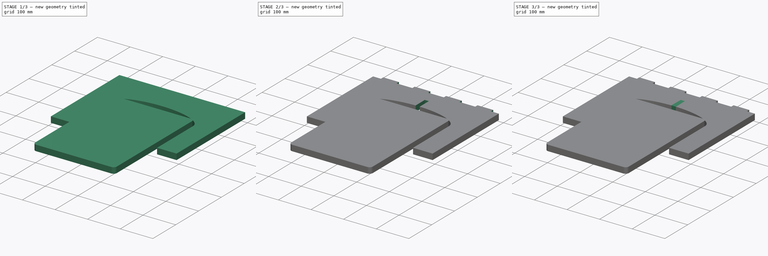
[diagram: build sequence overview — one tinted view per stage of 3, left to right]
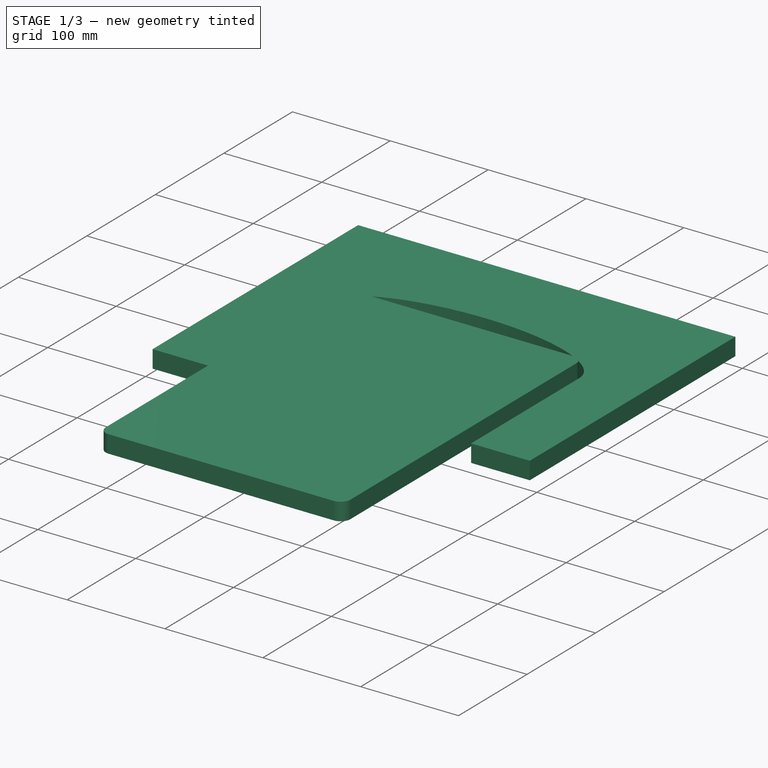
[diagram: stage 1 of 3 — iso view after this stage's code; geometry added in this stage tinted green]
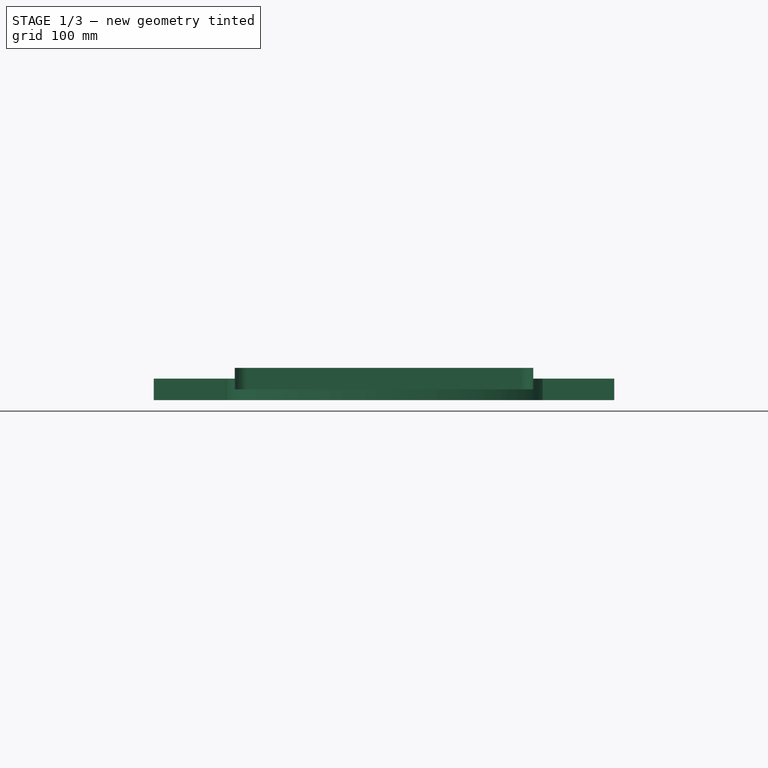
[diagram: stage 1 of 3 — front view after this stage's code; geometry added in this stage tinted green]
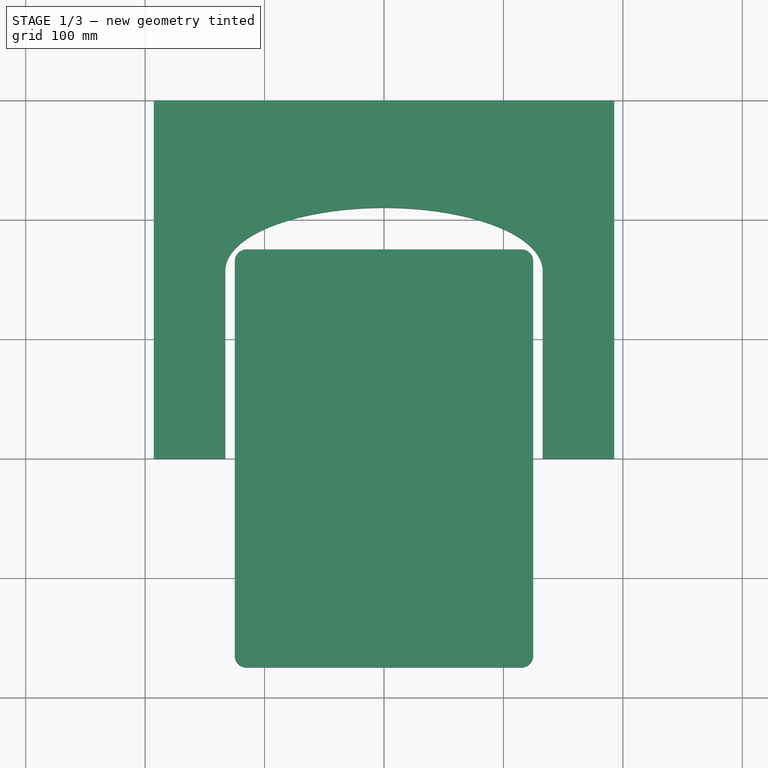
[diagram: stage 1 of 3 — top view after this stage's code; geometry added in this stage tinted green]
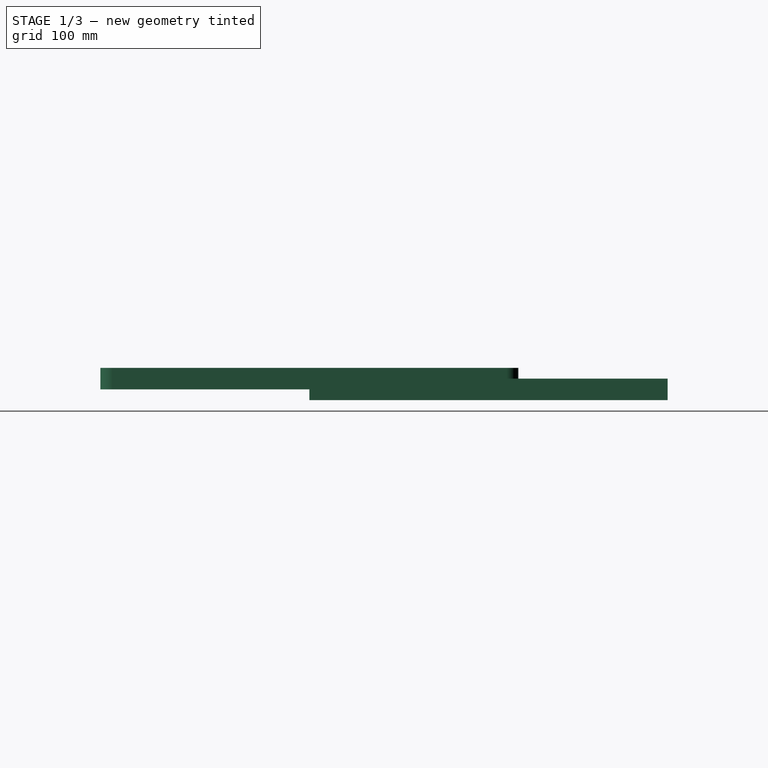
[diagram: stage 1 of 3 — right view after this stage's code; geometry added in this stage tinted green]
FCSTD DOCUMENT  (FreeCAD 0.22R37100 (Git))
Label: stool2
License: All rights reserved
LicenseURL: http://en.wikipedia.org/wiki/All_rights_reserved
objects: Part::Mirroring×8, Part::Compound×8, PartDesign::SubShapeBinder×8, Sketcher::SketchObject×6, PartDesign::Pocket×5, PartDesign::Pad×3, PartDesign::Body×3, Spreadsheet::Sheet×1, App::Part×1
note: 49 computed .brp shape members not serialized (recipe doc carries the construction recipe); baked Part::Feature solids carry a one-line shape summary decoded from their .brp

FEATURE [Sketcher::SketchObject] Sketch  label="leg_sketch"
  FullyConstrained = true
  expr: .Constraints.width = Sketch003.Constraints.leg_width
  sketch-geometry (11):
    g0: ArcOfEllipse CenterX=0 CenterY=157.5 CenterZ=0 NormalX=0 NormalY=0 NormalZ=1 MajorRadius=132.759 MinorRadius=52.5 AngleXU=0 StartAngle=0 EndAngle=1.5708
    g1: LineSegment StartX=132.759 StartY=157.5 StartZ=0 EndX=-132.759 EndY=157.5 EndZ=0
    g2: LineSegment StartX=-3.7e-15 StartY=210 StartZ=0 EndX=3.7e-15 EndY=105 EndZ=0
    g3: GeomPoint X=121.938 Y=157.5 Z=0
    g4: GeomPoint X=-121.938 Y=157.5 Z=0
    g5: LineSegment StartX=132.759 StartY=157.5 StartZ=0 EndX=132.759 EndY=0 EndZ=0
    g6: LineSegment StartX=132.759 StartY=0 StartZ=0 EndX=192.759 EndY=0 EndZ=0
    g7: LineSegment StartX=192.759 StartY=0 StartZ=0 EndX=192.759 EndY=300 EndZ=0
    g8: LineSegment StartX=192.759 StartY=300 StartZ=0 EndX=0 EndY=300 EndZ=0
    g9: GeomPoint X=-192.759 Y=300 Z=0
    g10: LineSegment StartX=0 StartY=0 StartZ=0 EndX=3.7e-15 EndY=105 EndZ=0
  constraints (22):
    c: InternalAlignment(g1-g4 -> g0) x4
    c: PointOnObject(g0,g-2)
    c: PointOnObject(g0,g-2)
    c: PointOnObject(g5,g-1)
    c: Tangent(g0,g5) = 1.5708
    c: Vertical(g5)
    c: Coincident(g6,g5)
    c: PointOnObject(g6,g-1)
    c: Coincident(g7,g6)
    c: Vertical(g7)
    c: Coincident(g8,g7)
    c: PointOnObject(g8,g-2)
    c: Horizontal(g8)
    c: Symmetric(g9,g7,g-2)
    c: DistanceX(g9,g7) = 385.519  'width'
    c: DistanceY(g7) = 300  'height'
    c: DistanceX(g6,g6) = 60  'leg_width'
    c: DistanceY(g0,g8) = 90  'arc_height'
    c: Horizontal(g1)
    c: Coincident(g10,g-1)
    c: Coincident(g10,g2)
    c: Equal(g10,g2)
FEATURE [Part::Mirroring] Part__Mirroring  label="Sketch (Mirror #1)"
  Base = (0,0,0)
  Normal = (1,0,0)
  Source = -> Sketch
FEATURE [Sketcher::SketchObject] Sketch001  label="cut1"
  ExternalGeometry = -> [Sketch]
  FullyConstrained = true
  sketch-geometry (3):
    g0: LineSegment StartX=0 StartY=250 StartZ=0 EndX=6.231 EndY=250 EndZ=0
    g1: LineSegment StartX=6.231 StartY=250 StartZ=0 EndX=6.231 EndY=0 EndZ=0
    g2: LineSegment StartX=6.231 StartY=0 StartZ=0 EndX=0 EndY=0 EndZ=0
  constraints (9):
    c: PointOnObject(g0,g-2)
    c: Horizontal(g0)
    c: Coincident(g1,g0)
    c: Vertical(g1)
    c: DistanceX(g0,g0) = 6.231  'cut_width'
    c: PointOnObject(g1,g-1)
    c: Coincident(g2,g1)
    c: Coincident(g2,g-1)
    c: DistanceY(g0) = 250
FEATURE [Sketcher::SketchObject] Sketch002
  ExternalGeometry = -> [Sketch]
  FullyConstrained = true
  expr: Constraints[8] = <<cut1>>.Constraints.cut_width
  sketch-geometry (4):
    g0: LineSegment StartX=0 StartY=250 StartZ=0 EndX=6.231 EndY=250 EndZ=0
    g1: LineSegment StartX=6.231 StartY=250 StartZ=0 EndX=6.231 EndY=300 EndZ=0
    g2: LineSegment StartX=6.231 StartY=300 StartZ=0 EndX=0 EndY=300 EndZ=0
    g3: LineSegment StartX=0 StartY=300 StartZ=0 EndX=0 EndY=250 EndZ=0
  constraints (11):
    c: Coincident(g0,g1)
    c: Coincident(g1,g2)
    c: Coincident(g2,g3)
    c: Coincident(g3,g0)
    c: Horizontal(g0)
    c: Horizontal(g2)
    c: Vertical(g1)
    c: Coincident(g2,g-4)
    c: DistanceX(g2,g2) = 6.231
    c: DistanceY(g0) = 250
    c: PointOnObject(g0,g-2)
FEATURE [Part::Compound] Compound
  Links = -> [Part__Mirroring,Sketch]
FEATURE [PartDesign::SubShapeBinder] Binder
  BindCopyOnChange = 0
  BindMode = 0
  ClaimChildren = true
  Context = -> Body [Binder.]
  Fuse = false
  MakeFace = true
  OffsetFill = false
  OffsetIntersection = false
  OffsetJoinType = 0
  OffsetOpenResult = false
  PartialLoad = false
  Relative = false
  Support = -> [Compound]
  _Version = 2
FEATURE [Part::Mirroring] Part__Mirroring001  label="Sketch001 (Mirror #2)"
  Base = (0,0,0)
  Normal = (1,0,0)
  Source = -> Sketch001
FEATURE [Part::Compound] Compound001
  Links = -> [Part__Mirroring001,Sketch001]
FEATURE [Part::Mirroring] Part__Mirroring002  label="Sketch002 (Mirror #3)"
  Base = (0,0,0)
  Normal = (1,0,0)
  Source = -> Sketch002
FEATURE [Part::Compound] Compound002
  Links = -> [Part__Mirroring002,Sketch002]
FEATURE [PartDesign::SubShapeBinder] Binder001
  BindCopyOnChange = 0
  BindMode = 0
  ClaimChildren = true
  Context = -> Body001 [Binder001.]
  Fuse = false
  MakeFace = true
  OffsetFill = false
  OffsetIntersection = false
  OffsetJoinType = 0
  OffsetOpenResult = false
  PartialLoad = false
  Relative = false
  Support = -> [Compound]
  _Version = 2
FEATURE [PartDesign::SubShapeBinder] Binder002
  BindCopyOnChange = 0
  BindMode = 0
  ClaimChildren = true
  Context = -> Body [Binder002.]
  Fuse = false
  MakeFace = true
  OffsetFill = false
  OffsetIntersection = false
  OffsetJoinType = 0
  OffsetOpenResult = false
  PartialLoad = false
  Relative = false
  Support = -> [Compound001]
  _Version = 2
FEATURE [PartDesign::SubShapeBinder] Binder003
  BindCopyOnChange = 0
  BindMode = 0
  ClaimChildren = true
  Context = -> Body001 [Binder003.]
  Fuse = false
  MakeFace = true
  OffsetFill = false
  OffsetIntersection = false
  OffsetJoinType = 0
  OffsetOpenResult = false
  PartialLoad = false
  Relative = false
  Support = -> [Compound002]
  _Version = 2
FEATURE [PartDesign::Pad] Pad
  Direction = (0,0,1)
  Length = 18
  Length2 = 10
  Midplane = true
  Profile = -> Binder
  Suppressed = false
  Type = 0
FEATURE [Sketcher::SketchObject] Sketch003  label="sit_sketch"
  FullyConstrained = true
  expr: Constraints[7] = <<Properties>>.Width / 2
  expr: Constraints[8] = <<Properties>>.Length / 2
  sketch-geometry (7):
    g0: LineSegment StartX=0 StartY=175 StartZ=0 EndX=115 EndY=175 EndZ=0
    g1: LineSegment StartX=125 StartY=165 StartZ=0 EndX=125 EndY=0 EndZ=0
    g2: ArcOfCircle CenterX=115 CenterY=165 CenterZ=0 NormalX=0 NormalY=0 NormalZ=1 AngleXU=0 Radius=10 StartAngle=-9e-16 EndAngle=1.5708
    g3: GeomPoint X=107.531 Y=159.979 Z=0
    g4: LineSegment StartX=100.061 StartY=165 StartZ=0 EndX=115 EndY=154.959 EndZ=0
    g5: LineSegment StartX=0 StartY=0 StartZ=0 EndX=107.531 EndY=159.979 EndZ=0
    g6: GeomPoint X=-107.531 Y=-159.979 Z=0
  constraints (19):
    c: PointOnObject(g0,g-2)
    c: Horizontal(g0)
    c: PointOnObject(g1,g-1)
    c: Vertical(g1)
    c: Tangent(g0,g2) = 1.5708
    c: Tangent(g1,g2) = 1.5708
    c: Distance(g4) = 18
    c: DistanceX(g1) = 125
    c: DistanceY(g0) = 175
    c: Coincident(g5,g-1)
    c: Coincident(g5,g3)
    c: Symmetric(g4,g4,g3)
    c: Perpendicular(g5,g4)
    c: Angle(g5,g-2) = 0.591791  'angle'
    c: Symmetric(g6,g3,g-1)
    c: Distance(g6,g3) = 385.519  'leg_width'
    c: Radius(g2) = 10
    c: Distance(g4,g0) = 10
    c: Distance(g4,g1) = 10
FEATURE [Part::Mirroring] Part__Mirroring003  label="Sketch003 (Mirror #4)"
  Base = (0,0,0)
  Normal = (1,0,0)
  Source = -> Sketch003
FEATURE [Part::Compound] Compound003
  Links = -> [Part__Mirroring003,Sketch003]
FEATURE [Part::Mirroring] Part__Mirroring004  label="Compound003 (Mirror #5)"
  Base = (0,0,0)
  Normal = (0,1,0)
  Source = -> Compound003
FEATURE [Part::Compound] Compound004
  Links = -> [Part__Mirroring004,Compound003]
FEATURE [PartDesign::SubShapeBinder] Binder004
  BindCopyOnChange = 0
  BindMode = 0
  ClaimChildren = true
  Context = -> Body002 [Binder004.]
  Fuse = false
  MakeFace = true
  OffsetFill = false
  OffsetIntersection = false
  OffsetJoinType = 0
  OffsetOpenResult = false
  PartialLoad = false
  Relative = false
  Support = -> [Compound004]
  _Version = 2
FEATURE [PartDesign::Pad] Pad002
  Direction = (0,0,1)
  Length = 18
  Length2 = 10
  Profile = -> Binder004
  Refine = true
  Suppressed = false
  Type = 0
FEATURE [PartDesign::Body] Body
  Group = -> [Binder,Binder002,Pad,Pocket,Binder005,Pocket003]
  Origin = -> Origin
  Placement = pos=(0,0,0) rot=(0,1,0;0.591791rad)
  Tip = -> Pocket003
  expr: .Placement.Rotation.Angle = Sketch003.Constraints.angle
FEATURE [App::Part] Part
  Group = -> [Body,Body001]
  Origin = -> Origin003
  Placement = pos=(0,0,0) rot=(0.57735,0.57735,0.57735;2.0944rad)
FEATURE [Sketcher::SketchObject] Sketch005
  ExternalGeometry = -> [Sketch003]
  FullyConstrained = false
  sketch-geometry (24):
    g0: LineSegment StartX=0 StartY=0 StartZ=0 EndX=107.531 EndY=159.979 EndZ=0
    g1: LineSegment StartX=20.8278 StartY=15.0326 StartZ=0 EndX=47.7104 EndY=55.0274 EndZ=0
    g2: LineSegment StartX=47.7104 StartY=55.0274 StartZ=0 EndX=32.9374 EndY=64.9571 EndZ=0
    g3: LineSegment StartX=32.9374 StartY=64.9571 StartZ=0 EndX=6.05482 EndY=24.9623 EndZ=0
    g4: LineSegment StartX=6.05482 StartY=24.9623 StartZ=0 EndX=20.8278 EndY=15.0326 EndZ=0
    g5: LineSegment StartX=74.5931 StartY=95.0223 StartZ=0 EndX=101.476 EndY=135.017 EndZ=0
    g6: LineSegment StartX=101.476 StartY=135.017 StartZ=0 EndX=86.7027 EndY=144.947 EndZ=0
    g7: LineSegment StartX=86.7027 StartY=144.947 StartZ=0 EndX=59.8201 EndY=104.952 EndZ=0
    g8: LineSegment StartX=59.8201 StartY=104.952 StartZ=0 EndX=74.5931 EndY=95.0223 EndZ=0
    g9: LineSegment StartX=115 StartY=154.959 StartZ=0 EndX=100.061 EndY=165 EndZ=0
    g10: LineSegment StartX=0 StartY=0 StartZ=0 EndX=-22.8748 EndY=15.3754 EndZ=0
    g11: LineSegment StartX=-22.8748 StartY=15.3754 StartZ=0 EndX=-9.43351 EndY=35.3728 EndZ=0
    g12: LineSegment StartX=-9.43351 StartY=35.3728 StartZ=0 EndX=4.0078 EndY=55.3702 EndZ=0
    g13: LineSegment StartX=4.0078 StartY=55.3702 StartZ=0 EndX=17.4491 EndY=75.3676 EndZ=0
    g14: LineSegment StartX=17.4491 StartY=75.3676 StartZ=0 EndX=30.8904 EndY=95.3651 EndZ=0
    g15: LineSegment StartX=30.8904 StartY=95.3651 StartZ=0 EndX=44.3317 EndY=115.362 EndZ=0
    g16: LineSegment StartX=44.3317 StartY=115.362 StartZ=0 EndX=57.7731 EndY=135.36 EndZ=0
    g17: LineSegment StartX=57.7731 StartY=135.36 StartZ=0 EndX=71.2144 EndY=155.357 EndZ=0
    g18: LineSegment StartX=71.2144 StartY=155.357 StartZ=0 EndX=84.6557 EndY=175.355 EndZ=0
    g19: LineSegment StartX=84.6557 StartY=175.355 StartZ=0 EndX=100.061 EndY=165 EndZ=0
    g20: LineSegment StartX=-9.43351 StartY=35.3728 StartZ=0 EndX=6.05482 EndY=24.9623 EndZ=0
    g21: LineSegment StartX=17.4491 StartY=75.3676 StartZ=0 EndX=32.9374 EndY=64.9571 EndZ=0
    g22: LineSegment StartX=44.3317 StartY=115.362 StartZ=0 EndX=59.8201 EndY=104.952 EndZ=0
    g23: LineSegment StartX=71.2144 StartY=155.357 StartZ=0 EndX=86.7027 EndY=144.947 EndZ=0
  constraints (64):
    c: Coincident(g0,g-1)
    c: Coincident(g1,g2)
    c: Coincident(g2,g3)
    c: Coincident(g3,g4)
    c: Coincident(g4,g1)
    c: Parallel(g1,g3)
    c: Parallel(g2,g4)
    c: Coincident(g5,g6)
    c: Coincident(g6,g7)
    c: Coincident(g7,g8)
    c: Coincident(g8,g5)
    c: Parallel(g5,g7)
    c: Parallel(g6,g8)
    c: Perpendicular(g6,g5)
    c: Perpendicular(g2,g1)
    c: Symmetric(g1,g3,g0)
    c: Distance(g4) = 17.8
    c: Equal(g8,g4)
    c: Symmetric(g5,g7,g0)
    c: Symmetric(g9,g9,g0)
    c: Perpendicular(g0,g9)
    c: Coincident(g0,g10)
    c: Coincident(g10,g11)
    c: Coincident(g11,g12)
    c: Coincident(g12,g13)
    c: Coincident(g13,g14)
    c: Coincident(g14,g15)
    c: Coincident(g15,g16)
    c: Coincident(g16,g17)
    c: Coincident(g17,g18)
    c: Coincident(g18,g19)
    c: Coincident(g19,g9)
    c: Parallel(g9,g19)
    c: Perpendicular(g10,g0)
    c: Parallel(g11,g12)
    c: Parallel(g12,g13)
    c: Parallel(g14,g15)
    c: Parallel(g15,g16)
    c: Parallel(g16,g17)
    c: Parallel(g17,g18)
    c: Equal(g11,g12)
    c: Equal(g12,g13)
    c: Equal(g13,g14)
    c: Equal(g14,g15)
    c: Equal(g15,g16)
    c: Equal(g16,g17)
    c: Equal(g17,g18)
    c: Parallel(g13,g14)
    c: Perpendicular(g11,g10)
    c: Coincident(g20,g11)
    c: Coincident(g20,g3)
    c: Coincident(g21,g13)
    c: Coincident(g21,g2)
    c: Coincident(g22,g15)
    c: Coincident(g22,g7)
    c: Perpendicular(g15,g22)
    c: Perpendicular(g13,g21)
    c: Distance(g9) = 18
    c: Distance(g9,g-3) = 10
    c: Distance(g9,g-4) = 10
    c: Perpendicular(g12,g20)
    c: Coincident(g23,g17)
    c: Coincident(g23,g6)
    c: Perpendicular(g17,g23)
FEATURE [Part::Mirroring] Part__Mirroring006  label="Sketch005 (Mirror #7)"
  Base = (0,0,0)
  Normal = (1,0,0)
  Source = -> Sketch005
FEATURE [Part::Compound] Compound006
  Links = -> [Part__Mirroring006,Sketch005]
FEATURE [Part::Mirroring] Part__Mirroring007  label="Compound006 (Mirror #8)"
  Base = (0,0,0)
  Normal = (0,1,0)
  Source = -> Compound006
FEATURE [Part::Compound] Compound007
  Links = -> [Part__Mirroring007,Compound006]
FEATURE [PartDesign::SubShapeBinder] Binder007
  BindCopyOnChange = 0
  BindMode = 0
  ClaimChildren = true
  Context = -> Body002 [Binder007.]
  Fuse = false
  MakeFace = true
  OffsetFill = false
  OffsetIntersection = false
  OffsetJoinType = 0
  OffsetOpenResult = false
  PartialLoad = false
  Relative = false
  Support = -> [Compound007]
  _Version = 2
FEATURE [PartDesign::Pocket] Pocket004
  BaseFeature = -> Pad002
  Direction = (0,0,-1)
  Length = 10
  Length2 = 5
  Profile = -> Binder007
  Reversed = true
  Suppressed = false
  Type = 0
FEATURE [PartDesign::Body] Body002
  Group = -> [Binder004,Pad002,Binder007,Pocket004]
  Origin = -> Origin002
  Placement = pos=(0,0,300) rot=(0,0,1;0rad)
  Tip = -> Pocket004
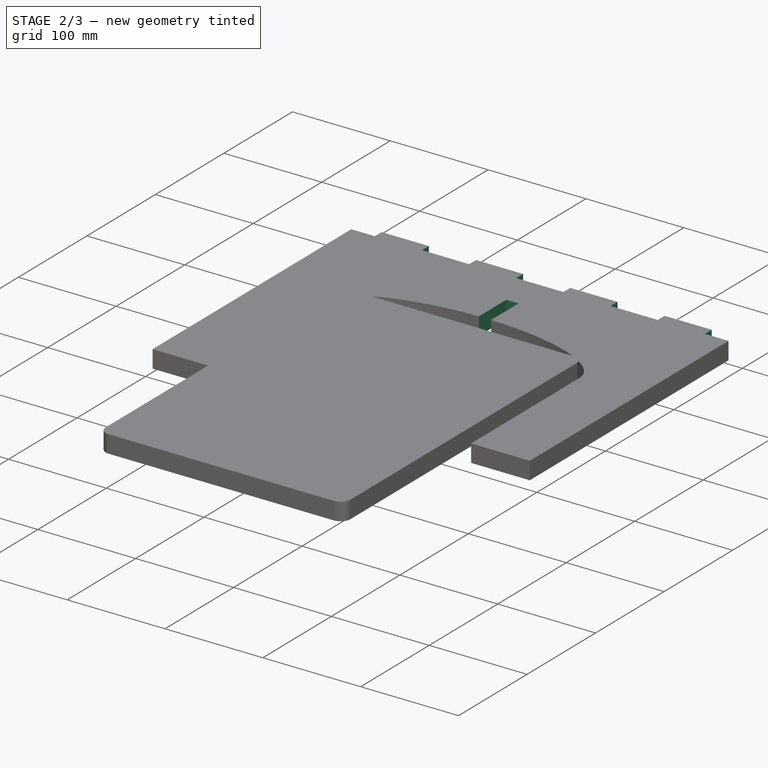
[diagram: stage 2 of 3 — iso view after this stage's code; geometry added in this stage tinted green]
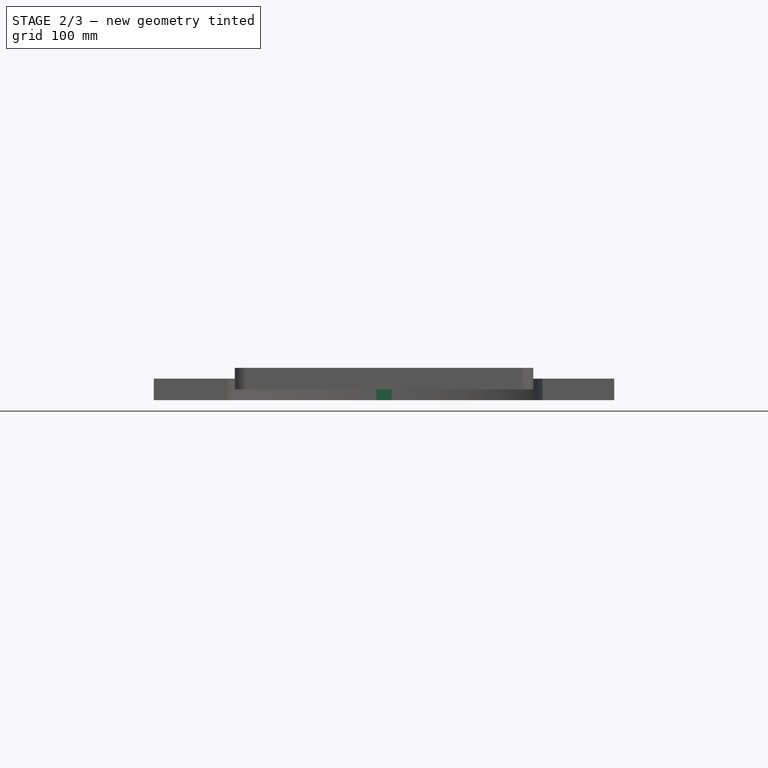
[diagram: stage 2 of 3 — front view after this stage's code; geometry added in this stage tinted green]
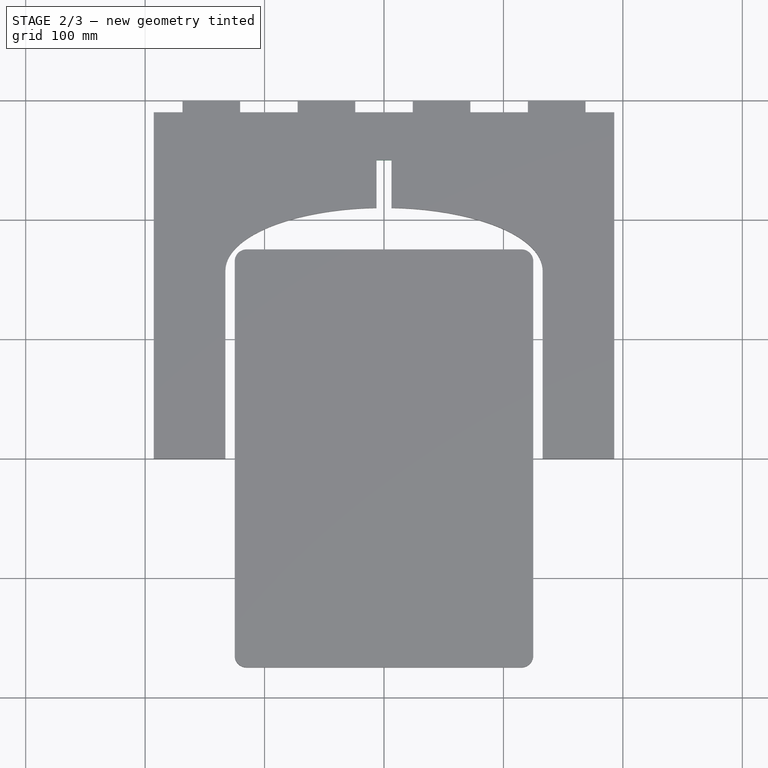
[diagram: stage 2 of 3 — top view after this stage's code; geometry added in this stage tinted green]
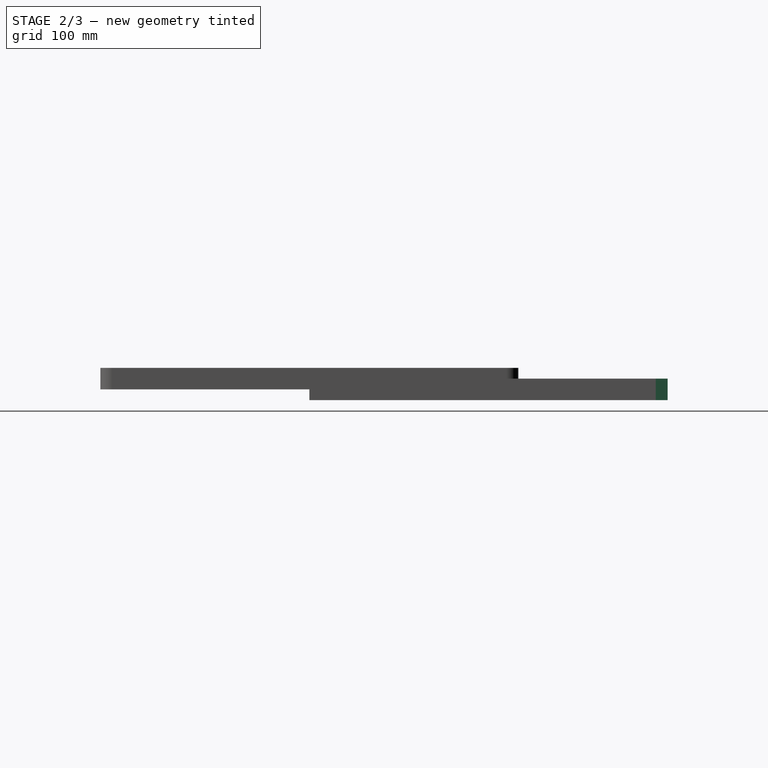
[diagram: stage 2 of 3 — right view after this stage's code; geometry added in this stage tinted green]
FEATURE [PartDesign::Pocket] Pocket
  BaseFeature = -> Pad
  Direction = (0,0,-1)
  Length = 5
  Length2 = 5
  Midplane = true
  Profile = -> Binder002
  Refine = true
  Suppressed = false
  Type = 1
FEATURE [PartDesign::Body] Body001
  Group = -> [Binder001,Binder003,Pad001,Pocket001,Binder006,Pocket002]
  Origin = -> Origin001
  Placement = pos=(0,0,0) rot=(0,-1,0;0.591791rad)
  Tip = -> Pocket002
  expr: .Placement.Rotation.Angle = -Sketch003.Constraints.angle
FEATURE [PartDesign::Pocket] Pocket003
  BaseFeature = -> Pocket
  Direction = (0,0,-1)
  Length = 5
  Length2 = 5
  Midplane = true
  Profile = -> Binder005
  Suppressed = false
  Type = 1
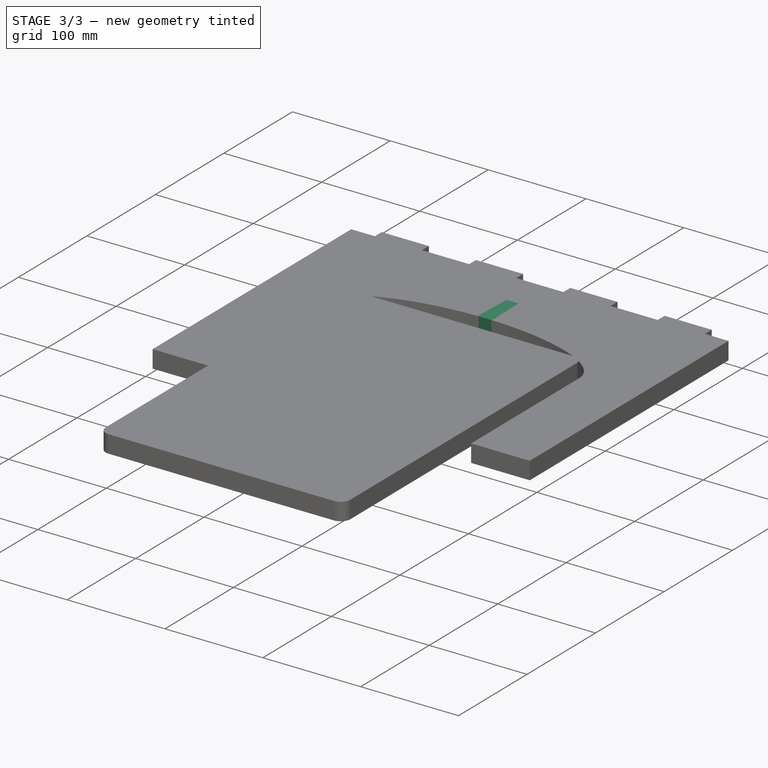
[diagram: stage 3 of 3 — iso view after this stage's code; geometry added in this stage tinted green]
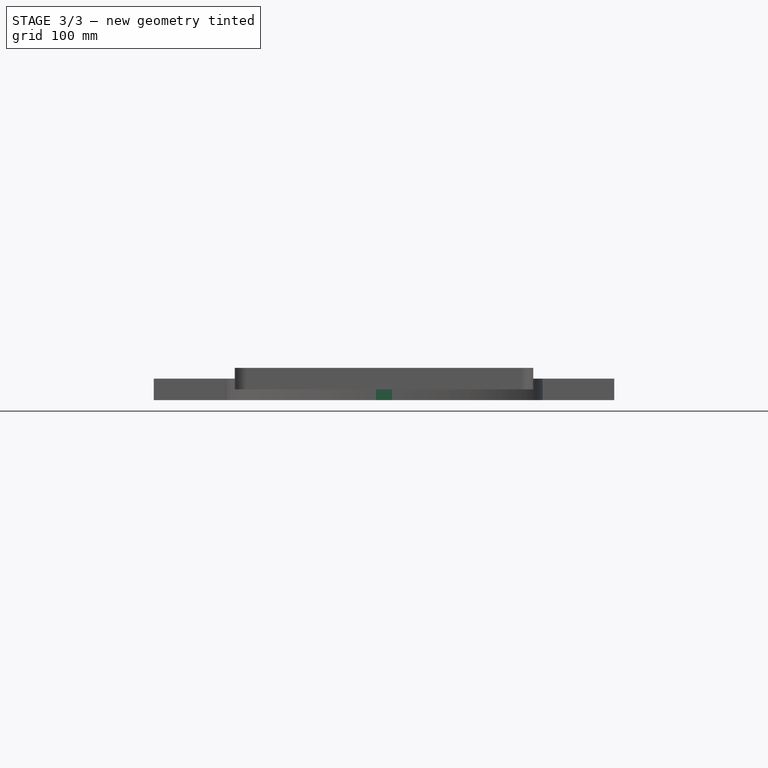
[diagram: stage 3 of 3 — front view after this stage's code; geometry added in this stage tinted green]
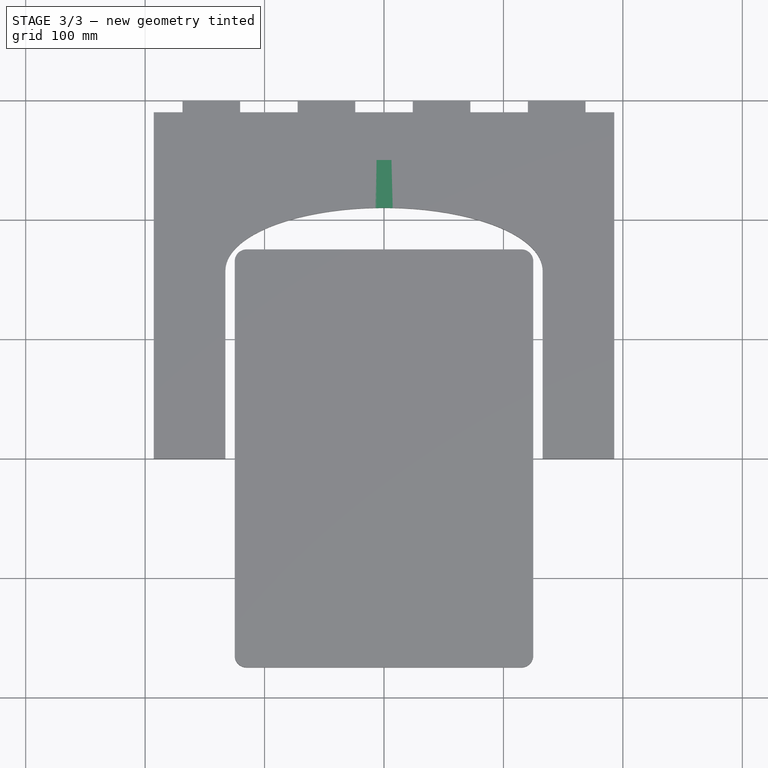
[diagram: stage 3 of 3 — top view after this stage's code; geometry added in this stage tinted green]
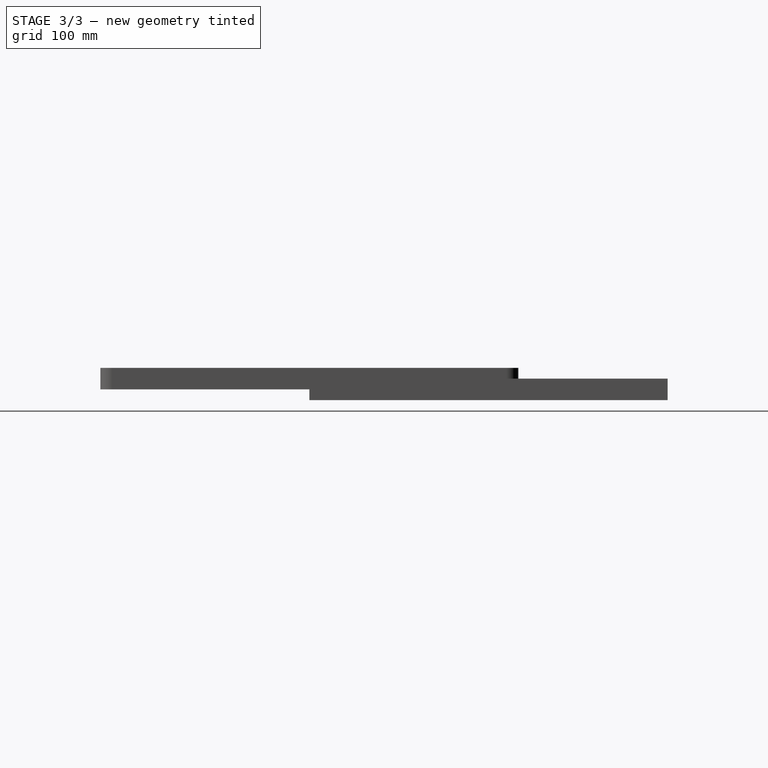
[diagram: stage 3 of 3 — right view after this stage's code; geometry added in this stage tinted green]
FEATURE [PartDesign::Pad] Pad001
  Direction = (0,0,1)
  Length = 18
  Length2 = 10
  Midplane = true
  Profile = -> Binder001
  Suppressed = false
  Type = 0
FEATURE [PartDesign::Pocket] Pocket001
  BaseFeature = -> Pad001
  Direction = (0,0,-1)
  Length = 5
  Length2 = 5
  Midplane = true
  Profile = -> Binder003
  Suppressed = false
  Type = 1
FEATURE [Spreadsheet::Sheet] Spreadsheet  label="Properties"
  cells = B2(Width)==250 mm; C2(Length)==350 mm; D2(Height)==300 mm
FEATURE [Sketcher::SketchObject] Sketch004
  FullyConstrained = true
  expr: Constraints[17] = Sketch003.Constraints.leg_width / 2
  expr: Constraints[18] = <<leg_sketch>>.Constraints.height
  sketch-geometry (20):
    g0: LineSegment StartX=120.475 StartY=300 StartZ=0 EndX=120.475 EndY=290 EndZ=0
    g1: LineSegment StartX=120.475 StartY=290 StartZ=0 EndX=168.665 EndY=290 EndZ=0
    g2: LineSegment StartX=168.665 StartY=290 StartZ=0 EndX=168.665 EndY=300 EndZ=0
    g3: LineSegment StartX=24.0949 StartY=300 StartZ=0 EndX=24.0949 EndY=290 EndZ=0
    g4: LineSegment StartX=24.0949 StartY=290 StartZ=0 EndX=72.2848 EndY=290 EndZ=0
    g5: LineSegment StartX=72.2848 StartY=290 StartZ=0 EndX=72.2848 EndY=300 EndZ=0
    g6: GeomPoint X=192.759 Y=300 Z=0
    g7: LineSegment StartX=72.2848 StartY=300 StartZ=0 EndX=96.3797 EndY=300 EndZ=0
    g8: LineSegment StartX=96.3797 StartY=300 StartZ=0 EndX=120.475 EndY=300 EndZ=0
    g9: LineSegment StartX=168.665 StartY=300 StartZ=0 EndX=192.759 EndY=300 EndZ=0
    g10: LineSegment StartX=0 StartY=300 StartZ=0 EndX=24.0949 EndY=300 EndZ=0
    g11: LineSegment StartX=72.2848 StartY=300 StartZ=0 EndX=48.1899 EndY=300 EndZ=0
    g12: LineSegment StartX=48.1899 StartY=300 StartZ=0 EndX=24.0949 EndY=300 EndZ=0
    g13: LineSegment StartX=168.665 StartY=300 StartZ=0 EndX=144.57 EndY=300 EndZ=0
    g14: LineSegment StartX=144.57 StartY=300 StartZ=0 EndX=120.475 EndY=300 EndZ=0
    g15: LineSegment StartX=168.665 StartY=290 StartZ=0 EndX=192.759 EndY=290 EndZ=0
    g16: LineSegment StartX=192.759 StartY=290 StartZ=0 EndX=192.759 EndY=300 EndZ=0
    g17: LineSegment StartX=120.475 StartY=290 StartZ=0 EndX=72.2848 EndY=290 EndZ=0
    g18: LineSegment StartX=24.0949 StartY=290 StartZ=0 EndX=0 EndY=290 EndZ=0
    g19: LineSegment StartX=0 StartY=290 StartZ=0 EndX=0 EndY=300 EndZ=0
  constraints (54):
    c: Coincident(g14,g0)
    c: Coincident(g0,g1)
    c: Coincident(g1,g2)
    c: Coincident(g2,g13)
    c: Horizontal(g1)
    c: Vertical(g0)
    c: Vertical(g2)
    c: Coincident(g12,g3)
    c: Coincident(g3,g4)
    c: Coincident(g4,g5)
    c: Coincident(g5,g11)
    c: Horizontal(g4)
    c: Vertical(g3)
    c: Vertical(g5)
    c: Horizontal(g4,g0)
    c: Horizontal(g11,g14)
    c: DistanceY(g3,g3) = 10
    c: DistanceX(g6) = 192.759
    c: DistanceY(g6) = 300
    c: Coincident(g10,g12)
    c: Coincident(g7,g11)
    c: Horizontal(g7)
    c: Coincident(g8,g7)
    c: Coincident(g8,g14)
    c: Coincident(g9,g13)
    c: Coincident(g9,g6)
    c: Horizontal(g9)
    c: Horizontal(g10)
    c: PointOnObject(g10,g-2)
    c: Equal(g10,g7)
    c: Equal(g7,g8)
    c: Equal(g8,g9)
    c: Coincident(g11,g12)
    c: Horizontal(g11)
    c: Horizontal(g12)
    c: Coincident(g13,g14)
    c: Horizontal(g13)
    c: Horizontal(g14)
    c: Equal(g13,g14)
    c: Equal(g14,g11)
    c: Equal(g11,g12)
    c: Equal(g12,g10)
    c: Coincident(g1,g15)
    c: Horizontal(g15)
    c: Coincident(g15,g16)
    c: Coincident(g16,g6)
    c: Vertical(g16)
    c: Coincident(g0,g17)
    c: Coincident(g17,g4)
    c: Coincident(g3,g18)
    c: PointOnObject(g18,g-2)
    c: Horizontal(g18)
    c: Coincident(g18,g19)
    c: Coincident(g19,g10)
FEATURE [Part::Mirroring] Part__Mirroring005  label="Sketch004 (Mirror #6)"
  Base = (0,0,0)
  Normal = (1,0,0)
  Source = -> Sketch004
FEATURE [Part::Compound] Compound005
  Links = -> [Part__Mirroring005,Sketch004]
FEATURE [PartDesign::SubShapeBinder] Binder005
  BindCopyOnChange = 0
  BindMode = 0
  ClaimChildren = true
  Context = -> Part [Body.Binder005.]
  Fuse = false
  MakeFace = true
  OffsetFill = false
  OffsetIntersection = false
  OffsetJoinType = 0
  OffsetOpenResult = false
  PartialLoad = false
  Relative = false
  Support = -> [Compound005]
  _Version = 2
FEATURE [PartDesign::SubShapeBinder] Binder006
  BindCopyOnChange = 0
  BindMode = 0
  ClaimChildren = true
  Context = -> Part [Body001.Binder006.]
  Fuse = false
  MakeFace = true
  OffsetFill = false
  OffsetIntersection = false
  OffsetJoinType = 0
  OffsetOpenResult = false
  PartialLoad = false
  Relative = false
  Support = -> [Compound005]
  _Version = 2
FEATURE [PartDesign::Pocket] Pocket002
  BaseFeature = -> Pocket001
  Direction = (0,0,-1)
  Length = 5
  Length2 = 5
  Midplane = true
  Profile = -> Binder006
  Suppressed = false
  Type = 1
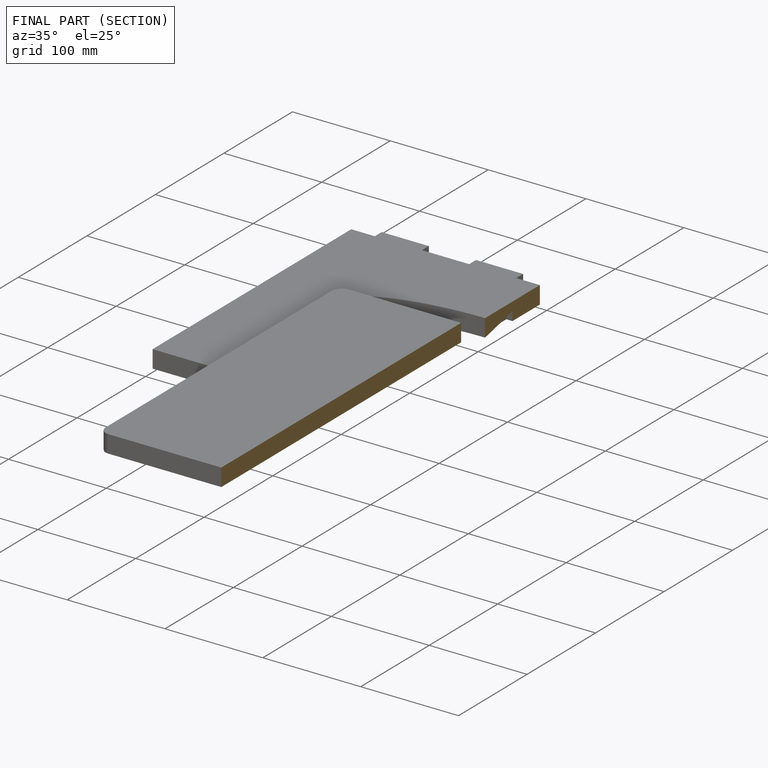
[diagram: finished part — half-section view (interior)]
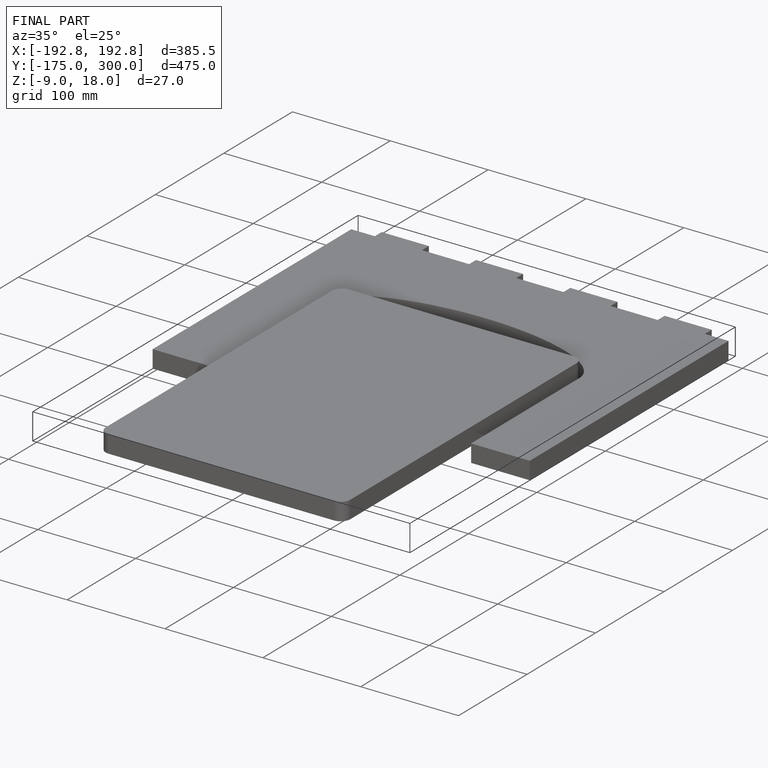
[diagram: finished part — iso view with bounding-box wireframe]
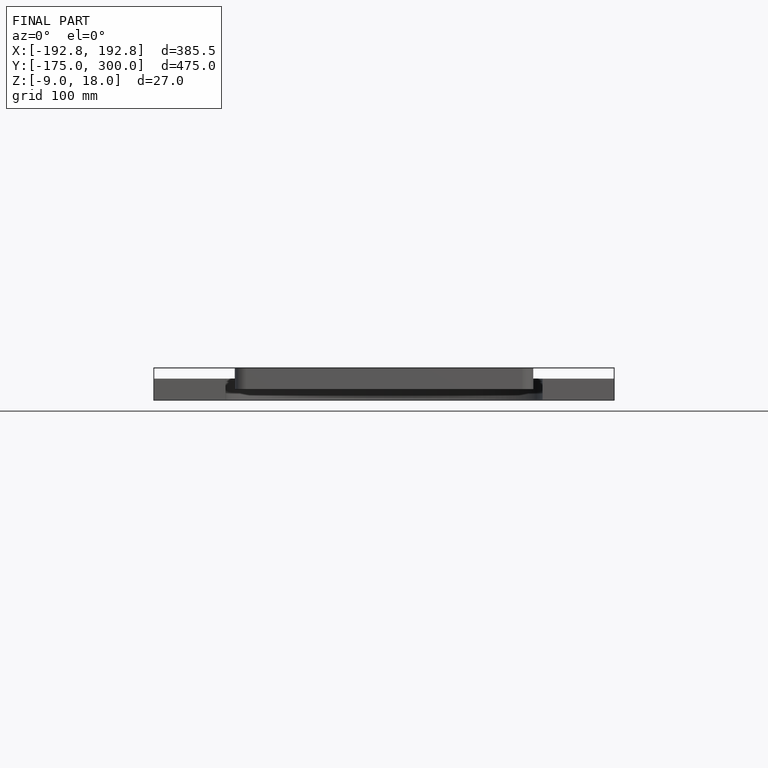
[diagram: finished part — front view with bounding-box wireframe]
